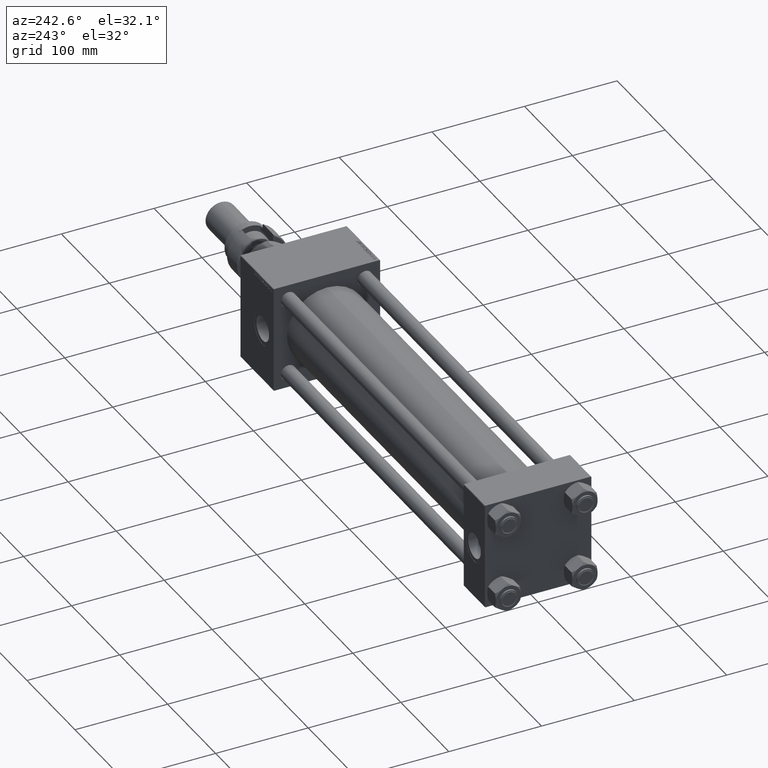
[diagram: clean part render]
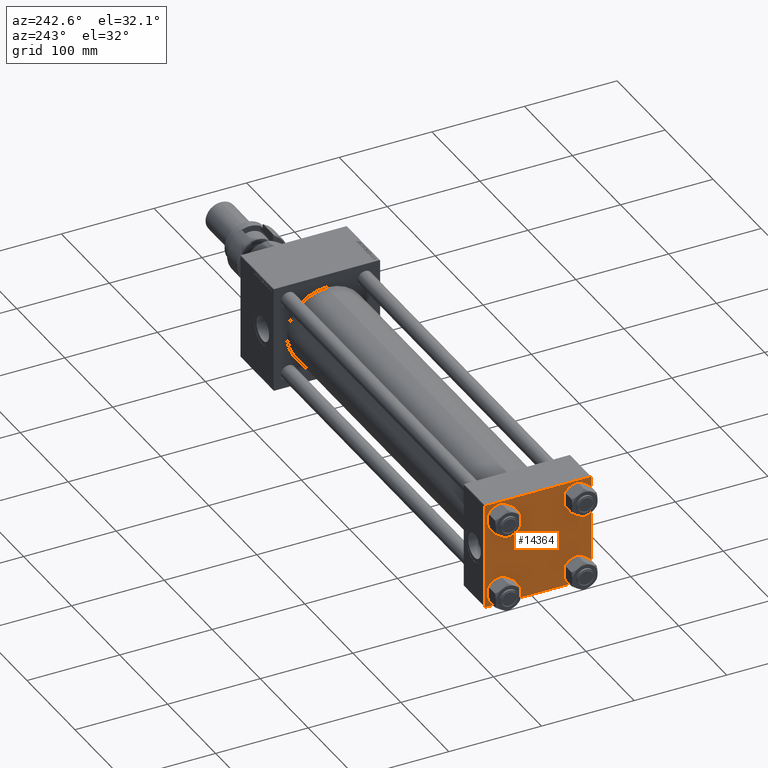
[diagram: same view with one face highlighted and labeled with its STEP entity id]
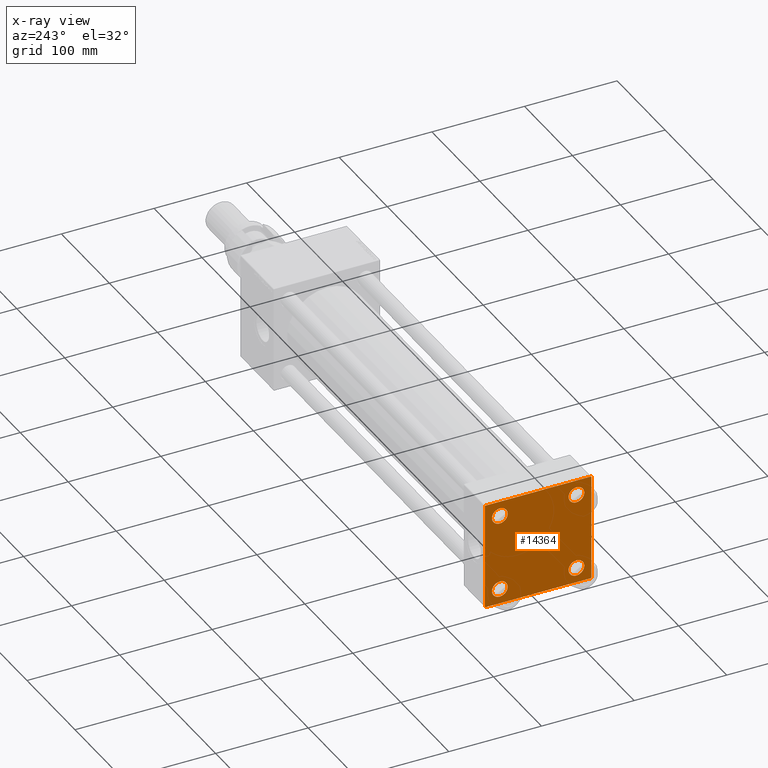
[diagram: x-ray of the same camera — body ghosted, the highlighted face saturated]
A machine part, auxiliary view. The second image highlights one B-rep face of the part: STEP entity #14364.
The next image is the same camera in x-ray: the body ghosted, the highlighted face saturated — about 0% of this face is hidden behind the body in this view.
In plain terms, the highlighted planar face has unit normal (-1, 0, 0).
Its self-contained STEP definition (entity closure, byte-faithful):
#107 = VERTEX_POINT ( 'NONE', #50326 ) ;
#554 = CARTESIAN_POINT ( 'NONE',  ( 0.000000000000000000, 41.34999999999999432, -49.85000000000000142 ) ) ;
#601 = CARTESIAN_POINT ( 'NONE',  ( 0.000000000000000000, -41.34999999999998721, 49.85000000000000853 ) ) ;
#1160 = CARTESIAN_POINT ( 'NONE',  ( 0.000000000000000000, -57.00000000000003553, 57.49999999999999289 ) ) ;
#2306 = VERTEX_POINT ( 'NONE', #39121 ) ;
#2329 = ORIENTED_EDGE ( 'NONE', *, *, #35937, .T. ) ;
#2694 = VERTEX_POINT ( 'NONE', #9185 ) ;
#2892 = CARTESIAN_POINT ( 'NONE',  ( 0.000000000000000000, -57.50000000000000711, 57.49999999999999289 ) ) ;
#3072 = ORIENTED_EDGE ( 'NONE', *, *, #39185, .F. ) ;
#3095 = AXIS2_PLACEMENT_3D ( 'NONE', #32424, #40851, #47470 ) ;
#3271 = CARTESIAN_POINT ( 'NONE',  ( 0.000000000000000000, -57.00000000000000711, -57.50000000000000711 ) ) ;
#3511 = CARTESIAN_POINT ( 'NONE',  ( 0.000000000000000000, 41.34999999999999432, -41.35000000000000142 ) ) ;
#4036 = VERTEX_POINT ( 'NONE', #6474 ) ;
#4544 = EDGE_LOOP ( 'NONE', ( #49938, #2329 ) ) ;
#5774 = CARTESIAN_POINT ( 'NONE',  ( 0.000000000000000000, -57.25000000000000711, -57.25000000000000711 ) ) ;
#5960 = LINE ( 'NONE', #47537, #10496 ) ;
#6146 = AXIS2_PLACEMENT_3D ( 'NONE', #3511, #36909, #6770 ) ;
#6232 = DIRECTION ( 'NONE',  ( -0.000000000000000000, 0.7071067811865376918, 0.7071067811865573427 ) ) ;
#6474 = CARTESIAN_POINT ( 'NONE',  ( 0.000000000000000000, -41.34999999999998721, -32.85000000000001563 ) ) ;
#6770 = DIRECTION ( 'NONE',  ( 0.000000000000000000, 0.000000000000000000, 1.000000000000000000 ) ) ;
#7128 = CARTESIAN_POINT ( 'NONE',  ( 0.000000000000000000, -41.34999999999998721, -49.85000000000000853 ) ) ;
#7933 = VERTEX_POINT ( 'NONE', #30949 ) ;
#7987 = EDGE_CURVE ( 'NONE', #4036, #47385, #46875, .T. ) ;
#8093 = VERTEX_POINT ( 'NONE', #37964 ) ;
#8248 = EDGE_CURVE ( 'NONE', #31548, #31209, #50321, .T. ) ;
#8469 = ORIENTED_EDGE ( 'NONE', *, *, #20637, .T. ) ;
#8907 = AXIS2_PLACEMENT_3D ( 'NONE', #24456, #45899, #25243 ) ;
#9079 = ORIENTED_EDGE ( 'NONE', *, *, #35171, .T. ) ;
#9185 = CARTESIAN_POINT ( 'NONE',  ( 0.000000000000000000, 57.00000000000000711, 57.50000000000000711 ) ) ;
#9380 = EDGE_CURVE ( 'NONE', #46077, #2306, #52438, .T. ) ;
#10179 = ORIENTED_EDGE ( 'NONE', *, *, #14725, .T. ) ;
#10369 = EDGE_LOOP ( 'NONE', ( #51825, #28114 ) ) ;
#10496 = VECTOR ( 'NONE', #6232, 1000.000000000000114 ) ;
#10606 = LINE ( 'NONE', #34509, #50897 ) ;
#10757 = LINE ( 'NONE', #2892, #42820 ) ;
#11128 = CARTESIAN_POINT ( 'NONE',  ( 0.000000000000000000, 57.25000000000081712, -57.24999999999922551 ) ) ;
#11287 = DIRECTION ( 'NONE',  ( 0.000000000000000000, 0.000000000000000000, -1.000000000000000000 ) ) ;
#11314 = AXIS2_PLACEMENT_3D ( 'NONE', #28417, #28149, #52369 ) ;
#11349 = CARTESIAN_POINT ( 'NONE',  ( 0.000000000000000000, 57.24999999999922551, 57.25000000000081712 ) ) ;
#11661 = DIRECTION ( 'NONE',  ( 0.000000000000000000, 0.000000000000000000, 1.000000000000000000 ) ) ;
#13146 = EDGE_LOOP ( 'NONE', ( #16590, #46844, #52721, #39694, #30960, #19639, #3072, #8469 ) ) ;
#13381 = DIRECTION ( 'NONE',  ( 1.000000000000000000, -0.000000000000000000, 0.000000000000000000 ) ) ;
#13904 = AXIS2_PLACEMENT_3D ( 'NONE', #51612, #18194, #14656 ) ;
#13986 = AXIS2_PLACEMENT_3D ( 'NONE', #43168, #30935, #51326 ) ;
#14001 = CIRCLE ( 'NONE', #6146, 8.499999999999992895 ) ;
#14364 = ADVANCED_FACE ( 'NONE', ( #27128, #14385, #18718, #52411, #39090 ), #34736, .T. ) ;
#14385 = FACE_BOUND ( 'NONE', #4544, .T. ) ;
#14552 = VECTOR ( 'NONE', #27989, 1000.000000000000000 ) ;
#14656 = DIRECTION ( 'NONE',  ( 0.000000000000000000, 0.000000000000000000, 1.000000000000000000 ) ) ;
#14725 = EDGE_CURVE ( 'NONE', #7933, #8093, #45888, .T. ) ;
#15480 = DIRECTION ( 'NONE',  ( -0.000000000000000000, -0.7071067811865376918, -0.7071067811865573427 ) ) ;
#16556 = VECTOR ( 'NONE', #15480, 1000.000000000000114 ) ;
#16590 = ORIENTED_EDGE ( 'NONE', *, *, #40383, .T. ) ;
#18194 = DIRECTION ( 'NONE',  ( 1.000000000000000000, -0.000000000000000000, 0.000000000000000000 ) ) ;
#18484 = CIRCLE ( 'NONE', #50589, 8.499999999999992895 ) ;
#18718 = FACE_BOUND ( 'NONE', #10369, .T. ) ;
#18810 = DIRECTION ( 'NONE',  ( 0.000000000000000000, -0.7071067811865474617, 0.7071067811865474617 ) ) ;
#19639 = ORIENTED_EDGE ( 'NONE', *, *, #45652, .T. ) ;
#20424 = AXIS2_PLACEMENT_3D ( 'NONE', #48892, #52958, #11661 ) ;
#20637 = EDGE_CURVE ( 'NONE', #2694, #31340, #24108, .T. ) ;
#21255 = EDGE_LOOP ( 'NONE', ( #35408, #9079 ) ) ;
#22089 = LINE ( 'NONE', #5774, #50509 ) ;
#23317 = DIRECTION ( 'NONE',  ( 0.000000000000000000, 0.7071067811865573427, -0.7071067811865376918 ) ) ;
#23814 = EDGE_LOOP ( 'NONE', ( #10179, #48351 ) ) ;
#24108 = LINE ( 'NONE', #11349, #44230 ) ;
#24453 = LINE ( 'NONE', #52733, #14552 ) ;
#24456 = CARTESIAN_POINT ( 'NONE',  ( 0.000000000000000000, 41.34999999999999432, -41.35000000000000142 ) ) ;
#24668 = LINE ( 'NONE', #36901, #42900 ) ;
#25243 = DIRECTION ( 'NONE',  ( 0.000000000000000000, 0.000000000000000000, 1.000000000000000000 ) ) ;
#25340 = EDGE_CURVE ( 'NONE', #50659, #26370, #22089, .T. ) ;
#26370 = VERTEX_POINT ( 'NONE', #48585 ) ;
#26530 = CARTESIAN_POINT ( 'NONE',  ( 0.000000000000000000, 41.34999999999999432, 41.35000000000000142 ) ) ;
#27128 = FACE_BOUND ( 'NONE', #21255, .T. ) ;
#27759 = EDGE_CURVE ( 'NONE', #8093, #7933, #18484, .T. ) ;
#27989 = DIRECTION ( 'NONE',  ( 0.000000000000000000, 0.000000000000000000, -1.000000000000000000 ) ) ;
#28114 = ORIENTED_EDGE ( 'NONE', *, *, #48741, .T. ) ;
#28149 = DIRECTION ( 'NONE',  ( 1.000000000000000000, -0.000000000000000000, 0.000000000000000000 ) ) ;
#28189 = CIRCLE ( 'NONE', #20424, 8.499999999999992895 ) ;
#28417 = CARTESIAN_POINT ( 'NONE',  ( 0.000000000000000000, -41.34999999999998721, 41.35000000000000853 ) ) ;
#29945 = DIRECTION ( 'NONE',  ( 0.000000000000000000, 0.000000000000000000, 1.000000000000000000 ) ) ;
#30935 = DIRECTION ( 'NONE',  ( -1.000000000000000000, 0.000000000000000000, -0.000000000000000000 ) ) ;
#30949 = CARTESIAN_POINT ( 'NONE',  ( 0.000000000000000000, 41.34999999999999432, 49.85000000000000142 ) ) ;
#30960 = ORIENTED_EDGE ( 'NONE', *, *, #31432, .F. ) ;
#31209 = VERTEX_POINT ( 'NONE', #36073 ) ;
#31340 = VERTEX_POINT ( 'NONE', #39009 ) ;
#31432 = EDGE_CURVE ( 'NONE', #107, #26370, #10757, .T. ) ;
#31548 = VERTEX_POINT ( 'NONE', #601 ) ;
#32015 = AXIS2_PLACEMENT_3D ( 'NONE', #26530, #34411, #43110 ) ;
#32424 = CARTESIAN_POINT ( 'NONE',  ( 0.000000000000000000, -41.34999999999998721, 41.35000000000000853 ) ) ;
#32818 = DIRECTION ( 'NONE',  ( 0.000000000000000000, -1.000000000000000000, -1.206764157201257045E-16 ) ) ;
#32978 = EDGE_CURVE ( 'NONE', #2306, #50659, #24668, .T. ) ;
#34411 = DIRECTION ( 'NONE',  ( 1.000000000000000000, -0.000000000000000000, 0.000000000000000000 ) ) ;
#34509 = CARTESIAN_POINT ( 'NONE',  ( 0.000000000000000000, 57.49999999999999289, 57.50000000000000711 ) ) ;
#34732 = VERTEX_POINT ( 'NONE', #554 ) ;
#34736 = PLANE ( 'NONE',  #13986 ) ;
#35171 = EDGE_CURVE ( 'NONE', #31209, #31548, #53375, .T. ) ;
#35408 = ORIENTED_EDGE ( 'NONE', *, *, #8248, .T. ) ;
#35937 = EDGE_CURVE ( 'NONE', #47385, #4036, #28189, .T. ) ;
#36073 = CARTESIAN_POINT ( 'NONE',  ( 0.000000000000000000, -41.34999999999998721, 32.85000000000001563 ) ) ;
#36901 = CARTESIAN_POINT ( 'NONE',  ( 0.000000000000000000, 57.49999999999999289, -57.49999999999999289 ) ) ;
#36909 = DIRECTION ( 'NONE',  ( 1.000000000000000000, -0.000000000000000000, 0.000000000000000000 ) ) ;
#37964 = CARTESIAN_POINT ( 'NONE',  ( 0.000000000000000000, 41.34999999999999432, 32.85000000000000853 ) ) ;
#39009 = CARTESIAN_POINT ( 'NONE',  ( 0.000000000000000000, 57.49999999999999289, 57.00000000000003553 ) ) ;
#39090 = FACE_OUTER_BOUND ( 'NONE', #13146, .T. ) ;
#39121 = CARTESIAN_POINT ( 'NONE',  ( 0.000000000000000000, 57.00000000000002132, -57.49999999999999289 ) ) ;
#39185 = EDGE_CURVE ( 'NONE', #2694, #41023, #10606, .T. ) ;
#39694 = ORIENTED_EDGE ( 'NONE', *, *, #25340, .T. ) ;
#40089 = CIRCLE ( 'NONE', #8907, 8.499999999999992895 ) ;
#40383 = EDGE_CURVE ( 'NONE', #31340, #46077, #24453, .T. ) ;
#40851 = DIRECTION ( 'NONE',  ( 1.000000000000000000, -0.000000000000000000, 0.000000000000000000 ) ) ;
#41023 = VERTEX_POINT ( 'NONE', #1160 ) ;
#41682 = CARTESIAN_POINT ( 'NONE',  ( 0.000000000000000000, 41.34999999999999432, -32.85000000000000853 ) ) ;
#41985 = CARTESIAN_POINT ( 'NONE',  ( 0.000000000000000000, 57.49999999999999289, -57.00000000000000711 ) ) ;
#42820 = VECTOR ( 'NONE', #11287, 1000.000000000000000 ) ;
#42900 = VECTOR ( 'NONE', #32818, 1000.000000000000000 ) ;
#43110 = DIRECTION ( 'NONE',  ( 0.000000000000000000, 0.000000000000000000, 1.000000000000000000 ) ) ;
#43168 = CARTESIAN_POINT ( 'NONE',  ( 0.000000000000000000, 0.000000000000000000, 0.000000000000000000 ) ) ;
#44230 = VECTOR ( 'NONE', #23317, 1000.000000000000114 ) ;
#45652 = EDGE_CURVE ( 'NONE', #107, #41023, #5960, .T. ) ;
#45818 = EDGE_CURVE ( 'NONE', #53465, #34732, #14001, .T. ) ;
#45888 = CIRCLE ( 'NONE', #32015, 8.499999999999992895 ) ;
#45899 = DIRECTION ( 'NONE',  ( 1.000000000000000000, -0.000000000000000000, 0.000000000000000000 ) ) ;
#46077 = VERTEX_POINT ( 'NONE', #41985 ) ;
#46844 = ORIENTED_EDGE ( 'NONE', *, *, #9380, .T. ) ;
#46875 = CIRCLE ( 'NONE', #13904, 8.499999999999992895 ) ;
#47385 = VERTEX_POINT ( 'NONE', #7128 ) ;
#47470 = DIRECTION ( 'NONE',  ( 0.000000000000000000, 0.000000000000000000, 1.000000000000000000 ) ) ;
#47537 = CARTESIAN_POINT ( 'NONE',  ( -0.000000000000000000, -57.25000000000081712, 57.24999999999922551 ) ) ;
#48351 = ORIENTED_EDGE ( 'NONE', *, *, #27759, .T. ) ;
#48585 = CARTESIAN_POINT ( 'NONE',  ( 0.000000000000000000, -57.50000000000000711, -57.00000000000000711 ) ) ;
#48741 = EDGE_CURVE ( 'NONE', #34732, #53465, #40089, .T. ) ;
#48892 = CARTESIAN_POINT ( 'NONE',  ( 0.000000000000000000, -41.34999999999998721, -41.35000000000000853 ) ) ;
#49938 = ORIENTED_EDGE ( 'NONE', *, *, #7987, .T. ) ;
#50321 = CIRCLE ( 'NONE', #11314, 8.499999999999992895 ) ;
#50326 = CARTESIAN_POINT ( 'NONE',  ( 0.000000000000000000, -57.50000000000000711, 57.00000000000000711 ) ) ;
#50509 = VECTOR ( 'NONE', #18810, 1000.000000000000114 ) ;
#50589 = AXIS2_PLACEMENT_3D ( 'NONE', #50607, #13381, #29945 ) ;
#50607 = CARTESIAN_POINT ( 'NONE',  ( 0.000000000000000000, 41.34999999999999432, 41.35000000000000142 ) ) ;
#50659 = VERTEX_POINT ( 'NONE', #3271 ) ;
#50897 = VECTOR ( 'NONE', #51100, 1000.000000000000000 ) ;
#51100 = DIRECTION ( 'NONE',  ( 0.000000000000000000, -1.000000000000000000, -1.206764157201257045E-16 ) ) ;
#51326 = DIRECTION ( 'NONE',  ( -0.000000000000000000, 0.000000000000000000, 1.000000000000000000 ) ) ;
#51612 = CARTESIAN_POINT ( 'NONE',  ( 0.000000000000000000, -41.34999999999998721, -41.35000000000000853 ) ) ;
#51825 = ORIENTED_EDGE ( 'NONE', *, *, #45818, .T. ) ;
#52369 = DIRECTION ( 'NONE',  ( 0.000000000000000000, 0.000000000000000000, 1.000000000000000000 ) ) ;
#52411 = FACE_BOUND ( 'NONE', #23814, .T. ) ;
#52438 = LINE ( 'NONE', #11128, #16556 ) ;
#52721 = ORIENTED_EDGE ( 'NONE', *, *, #32978, .T. ) ;
#52733 = CARTESIAN_POINT ( 'NONE',  ( 0.000000000000000000, 57.49999999999999289, 57.50000000000000711 ) ) ;
#52958 = DIRECTION ( 'NONE',  ( 1.000000000000000000, -0.000000000000000000, 0.000000000000000000 ) ) ;
#53375 = CIRCLE ( 'NONE', #3095, 8.499999999999992895 ) ;
#53465 = VERTEX_POINT ( 'NONE', #41682 ) ;